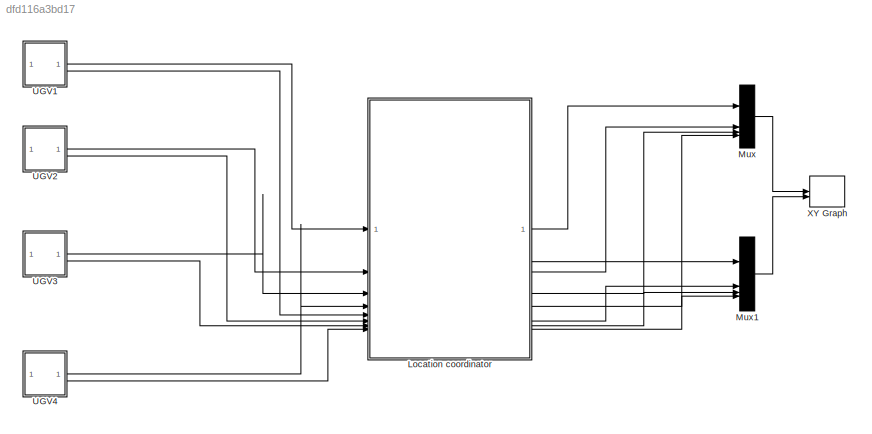
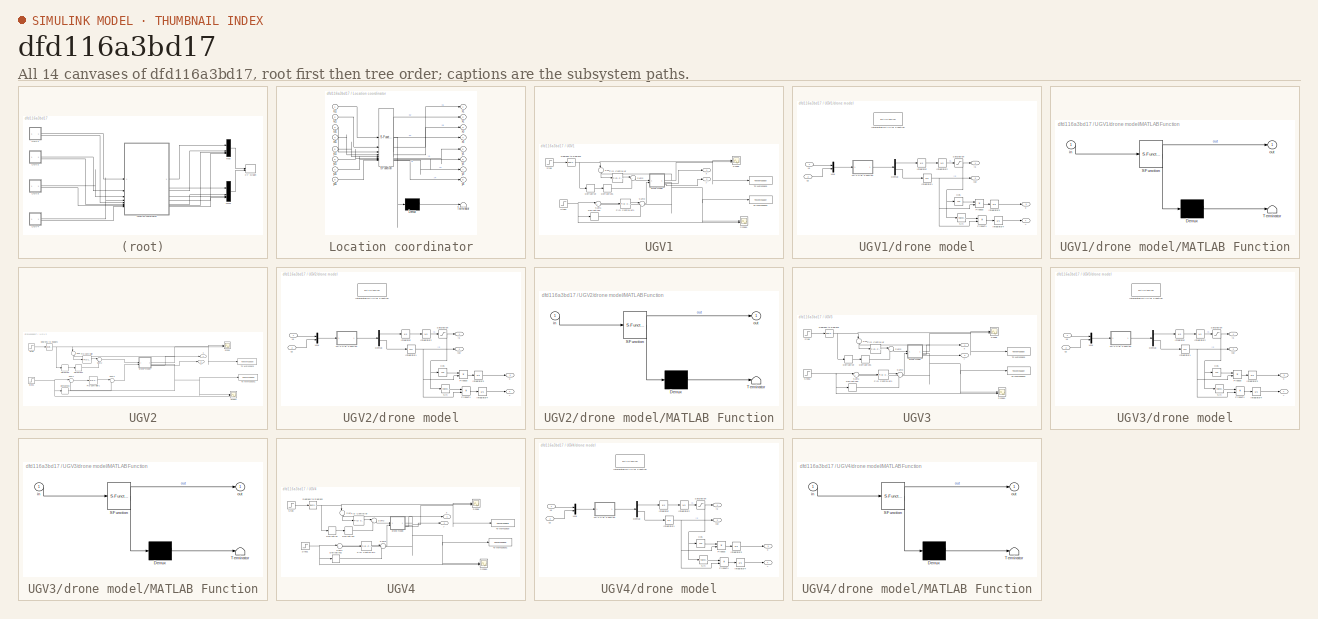
[diagram: thumbnail index - all 14 canvases of the model, root first then tree order]
MODEL slx_dfd116a3bd17
KIND model
CONFIG AbsTol = auto
CONFIG EnableMultiTasking = off
CONFIG FixedStep = auto
CONFIG InitFcn = xlim = 100;\nylim = 80;\nx10 = 5;\ny10 = 120;\nx20 = 5;\ny20 = 30;\nx30 = 30;\ny30 = 10;\nx40 = 130;\ny40 = 100;
CONFIG MaxStep = 0.70000000000000007
CONFIG MinStep = auto
CONFIG RelTol = 1e-3
CONFIG SampleTimeConstraint = Unconstrained
CONFIG SolverName = ode15s
CONFIG StartTime = 0.0
CONFIG StopTime = 80
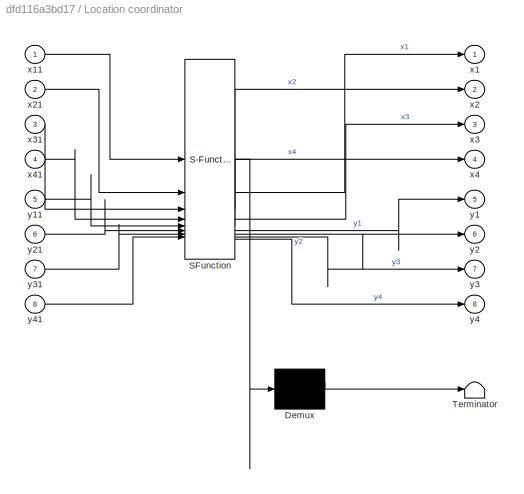
BLOCK [SubSystem] Location coordinator
  ErrorFcn = Stateflow.Translate.translate
  PermitHierarchicalResolution = ExplicitOnly
  SFBlockType = MATLAB Function
  TreatAsAtomicUnit = on
BLOCK [Demux] Location coordinator/ Demux 
  Outputs = 1
BLOCK [S-Function] Location coordinator/ SFunction 
  EnableBusSupport = on
  FunctionName = sf_sfun
  Parameters = x10,x20,x30,x40,xlim,y10,y20,y30,y40,ylim
  PortCounts = [8 9]
  SFcnIsStateOwnerBlock = off
  SFunctionDeploymentMode = off
  Tag = Stateflow S-Function 5
BLOCK [Terminator] Location coordinator/ Terminator 
BLOCK [Outport] Location coordinator/x1
BLOCK [Inport] Location coordinator/x11
BLOCK [Outport] Location coordinator/x2
  Port = 2
BLOCK [Inport] Location coordinator/x21
  Port = 2
BLOCK [Outport] Location coordinator/x3
  Port = 3
BLOCK [Inport] Location coordinator/x31
  Port = 3
BLOCK [Outport] Location coordinator/x4
  Port = 4
BLOCK [Inport] Location coordinator/x41
  Port = 4
BLOCK [Outport] Location coordinator/y1
  Port = 5
BLOCK [Inport] Location coordinator/y11
  Port = 5
BLOCK [Outport] Location coordinator/y2
  Port = 6
BLOCK [Inport] Location coordinator/y21
  Port = 6
BLOCK [Outport] Location coordinator/y3
  Port = 7
BLOCK [Inport] Location coordinator/y31
  Port = 7
BLOCK [Outport] Location coordinator/y4
  Port = 8
BLOCK [Inport] Location coordinator/y41
  Port = 8
BLOCK [Mux] Mux
  DisplayOption = bar
BLOCK [Mux] Mux1
  DisplayOption = bar
BLOCK [SubSystem] UGV1
BLOCK [Reference] UGV1/Degrees to Radians  REF=simulink_extras/Transformations/Degrees to
Radians
  SourceBlock = simulink_extras/Transformations/Degrees to\nRadians
  SourceType = DegreesToRadians
BLOCK [Derivative] UGV1/Derivative
BLOCK [Derivative] UGV1/Derivative1
BLOCK [Derivative] UGV1/Derivative2
BLOCK [Reference] UGV1/PID Controller  REF=slpidlib/PID Controller
  SourceBlock = slpidlib/PID Controller
  SourceType = PID 1dof
BLOCK [Reference] UGV1/PID Controller1  REF=slpidlib/PID Controller
  SourceBlock = slpidlib/PID Controller
  SourceType = PID 1dof
BLOCK [Scope] UGV1/Scope
  Floating = off
  NameLocation = right
  NumInputPorts = 2
  ScopeSpecificationString = Simulink.scopes.TimeScopeBlockCfg('CurrentConfiguration', extmgr.ConfigurationSet(extmgr.Configuration('Core','General UI',true),extmgr.Configuration('Core','Source UI',true),extmgr.Configuration('Sources','WiredSimulink',true),extmgr.Configuration('Visuals','Time Domain',true,'SerializedDisplays',{struct('MinYLimReal','-0.14438','MaxYLimReal','1.29946','YLabelReal','','MinYLimMag','0.00000','MaxY...<+1557ch>
BLOCK [Scope] UGV1/Scope1
  Floating = off
  NumInputPorts = 2
  ScopeSpecificationString = Simulink.scopes.TimeScopeBlockCfg('CurrentConfiguration', extmgr.ConfigurationSet(extmgr.Configuration('Core','General UI',true),extmgr.Configuration('Core','Source UI',true),extmgr.Configuration('Sources','WiredSimulink',true,'DataLoggingVariableName','ScopeData1'),extmgr.Configuration('Visuals','Time Domain',true,'SerializedDisplays',{struct('MinYLimReal','-1.97689','MaxYLimReal','2.44362','YLab...<+1421ch>
BLOCK [Step] UGV1/Step
  After = atan2d((ylim-y10), (xlim-x10))
  SampleTime = 0
  Time = 0
BLOCK [Step] UGV1/Step1
  After = 2
  SampleTime = 0
  Time = 0
BLOCK [Sum] UGV1/Sum
  Inputs = |+-
  NameLocation = left
BLOCK [Sum] UGV1/Sum1
  Inputs = |+-
BLOCK [Sum] UGV1/Sum2
  Inputs = |++
BLOCK [Sum] UGV1/Sum3
  Inputs = |++
BLOCK [ToWorkspace] UGV1/To Workspace
  FixptAsFi = on
  MaxDataPoints = inf
  SampleTime = -1
  SaveFormat = Timeseries
  VariableName = theta
BLOCK [ToWorkspace] UGV1/To Workspace1
  FixptAsFi = on
  MaxDataPoints = inf
  SampleTime = -1
  SaveFormat = Timeseries
  VariableName = vel
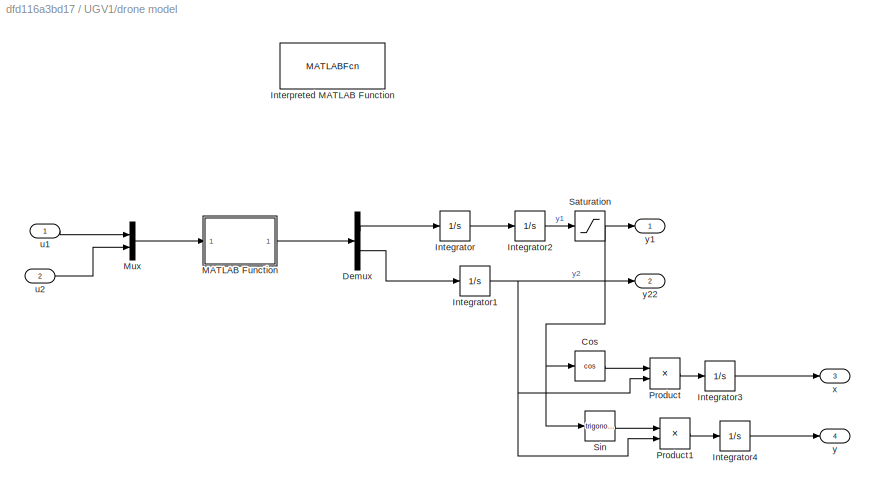
BLOCK [SubSystem] UGV1/drone model
BLOCK [Trigonometry] UGV1/drone model/Cos
  Operator = cos
BLOCK [Demux] UGV1/drone model/Demux
  Outputs = 2
BLOCK [Integrator] UGV1/drone model/Integrator
BLOCK [Integrator] UGV1/drone model/Integrator1
BLOCK [Integrator] UGV1/drone model/Integrator2
BLOCK [Integrator] UGV1/drone model/Integrator3
  InitialCondition = x10
BLOCK [Integrator] UGV1/drone model/Integrator4
  InitialCondition = y10
BLOCK [MATLABFcn] UGV1/drone model/Interpreted MATLAB Function
  Commented = on
  MATLABFcn = ugv
  OutputDimensions = 2
BLOCK [SubSystem] UGV1/drone model/MATLAB Function
  ErrorFcn = Stateflow.Translate.translate
  PermitHierarchicalResolution = ExplicitOnly
  SFBlockType = MATLAB Function
  TreatAsAtomicUnit = on
BLOCK [Demux] UGV1/drone model/MATLAB Function/ Demux 
  Outputs = 1
BLOCK [S-Function] UGV1/drone model/MATLAB Function/ SFunction 
  EnableBusSupport = on
  FunctionName = sf_sfun
  PortCounts = [1 2]
  SFcnIsStateOwnerBlock = off
  SFunctionDeploymentMode = off
  Tag = Stateflow S-Function 2
BLOCK [Terminator] UGV1/drone model/MATLAB Function/ Terminator 
BLOCK [Inport] UGV1/drone model/MATLAB Function/in
BLOCK [Outport] UGV1/drone model/MATLAB Function/out
BLOCK [Mux] UGV1/drone model/Mux
  DisplayOption = bar
  Inputs = 2
BLOCK [Product] UGV1/drone model/Product
BLOCK [Product] UGV1/drone model/Product1
BLOCK [Saturate] UGV1/drone model/Saturation
  LowerLimit = -pi
  UpperLimit = pi
BLOCK [Trigonometry] UGV1/drone model/Sin
BLOCK [Inport] UGV1/drone model/u1
BLOCK [Inport] UGV1/drone model/u2
  Port = 2
BLOCK [Outport] UGV1/drone model/x
  Port = 3
BLOCK [Outport] UGV1/drone model/y
  Port = 4
BLOCK [Outport] UGV1/drone model/y1
BLOCK [Outport] UGV1/drone model/y22
  Port = 2
BLOCK [Outport] UGV1/x
BLOCK [Outport] UGV1/y
  Port = 2
BLOCK [SubSystem] UGV2
BLOCK [Reference] UGV2/Degrees to Radians  REF=simulink_extras/Transformations/Degrees to
Radians
  SourceBlock = simulink_extras/Transformations/Degrees to\nRadians
  SourceType = DegreesToRadians
BLOCK [Derivative] UGV2/Derivative
BLOCK [Derivative] UGV2/Derivative1
BLOCK [Derivative] UGV2/Derivative2
BLOCK [Reference] UGV2/PID Controller  REF=slpidlib/PID Controller
  SourceBlock = slpidlib/PID Controller
  SourceType = PID 1dof
BLOCK [Reference] UGV2/PID Controller1  REF=slpidlib/PID Controller
  SourceBlock = slpidlib/PID Controller
  SourceType = PID 1dof
BLOCK [Scope] UGV2/Scope
  Floating = off
  NameLocation = right
  NumInputPorts = 2
  ScopeSpecificationString = Simulink.scopes.TimeScopeBlockCfg('CurrentConfiguration', extmgr.ConfigurationSet(extmgr.Configuration('Core','General UI',true),extmgr.Configuration('Core','Source UI',true),extmgr.Configuration('Sources','WiredSimulink',true),extmgr.Configuration('Visuals','Time Domain',true,'SerializedDisplays',{struct('MinYLimReal','-0.07484','MaxYLimReal','0.67353','YLabelReal','','MinYLimMag','0.00000','MaxY...<+1511ch>
BLOCK [Scope] UGV2/Scope1
  Floating = off
  NumInputPorts = 2
  ScopeSpecificationString = Simulink.scopes.TimeScopeBlockCfg('CurrentConfiguration', extmgr.ConfigurationSet(extmgr.Configuration('Core','General UI',true),extmgr.Configuration('Core','Source UI',true),extmgr.Configuration('Sources','WiredSimulink',true,'DataLoggingVariableName','ScopeData1'),extmgr.Configuration('Visuals','Time Domain',true,'SerializedDisplays',{struct('MinYLimReal','-0.95621','MaxYLimReal','1.80625','YLab...<+1510ch>
BLOCK [Step] UGV2/Step
  After = atan2d((ylim-y20), (xlim-x20))
  SampleTime = 0
  Time = 0
BLOCK [Step] UGV2/Step1
  After = 1.53
  SampleTime = 0
  Time = 0
BLOCK [Sum] UGV2/Sum
  Inputs = |+-
  NameLocation = left
BLOCK [Sum] UGV2/Sum1
  Inputs = |+-
BLOCK [Sum] UGV2/Sum2
  Inputs = |++
BLOCK [Sum] UGV2/Sum3
  Inputs = |++
BLOCK [ToWorkspace] UGV2/To Workspace
  FixptAsFi = on
  MaxDataPoints = inf
  SampleTime = -1
  SaveFormat = Timeseries
  VariableName = theta2
BLOCK [ToWorkspace] UGV2/To Workspace1
  FixptAsFi = on
  MaxDataPoints = inf
  SampleTime = -1
  SaveFormat = Timeseries
  VariableName = vel2
BLOCK [SubSystem] UGV2/drone model
BLOCK [Trigonometry] UGV2/drone model/Cos
  Operator = cos
BLOCK [Demux] UGV2/drone model/Demux
  Outputs = 2
BLOCK [Integrator] UGV2/drone model/Integrator
BLOCK [Integrator] UGV2/drone model/Integrator1
BLOCK [Integrator] UGV2/drone model/Integrator2
BLOCK [Integrator] UGV2/drone model/Integrator3
  InitialCondition = x20
BLOCK [Integrator] UGV2/drone model/Integrator4
  InitialCondition = y20
BLOCK [MATLABFcn] UGV2/drone model/Interpreted MATLAB Function
  Commented = on
  MATLABFcn = ugv
  OutputDimensions = 2
BLOCK [SubSystem] UGV2/drone model/MATLAB Function
  ErrorFcn = Stateflow.Translate.translate
  PermitHierarchicalResolution = ExplicitOnly
  SFBlockType = MATLAB Function
  TreatAsAtomicUnit = on
BLOCK [Demux] UGV2/drone model/MATLAB Function/ Demux 
  Outputs = 1
BLOCK [S-Function] UGV2/drone model/MATLAB Function/ SFunction 
  EnableBusSupport = on
  FunctionName = sf_sfun
  PortCounts = [1 2]
  SFcnIsStateOwnerBlock = off
  SFunctionDeploymentMode = off
  Tag = Stateflow S-Function 1
BLOCK [Terminator] UGV2/drone model/MATLAB Function/ Terminator 
BLOCK [Inport] UGV2/drone model/MATLAB Function/in
BLOCK [Outport] UGV2/drone model/MATLAB Function/out
BLOCK [Mux] UGV2/drone model/Mux
  DisplayOption = bar
  Inputs = 2
BLOCK [Product] UGV2/drone model/Product
BLOCK [Product] UGV2/drone model/Product1
BLOCK [Saturate] UGV2/drone model/Saturation
  LowerLimit = -pi
  UpperLimit = pi
BLOCK [Trigonometry] UGV2/drone model/Sin
BLOCK [Inport] UGV2/drone model/u1
BLOCK [Inport] UGV2/drone model/u2
  Port = 2
BLOCK [Outport] UGV2/drone model/x
  Port = 3
BLOCK [Outport] UGV2/drone model/y
  Port = 4
BLOCK [Outport] UGV2/drone model/y1
BLOCK [Outport] UGV2/drone model/y22
  Port = 2
BLOCK [Outport] UGV2/x
BLOCK [Outport] UGV2/y
  Port = 2
BLOCK [SubSystem] UGV3
BLOCK [Reference] UGV3/Degrees to Radians  REF=simulink_extras/Transformations/Degrees to
Radians
  SourceBlock = simulink_extras/Transformations/Degrees to\nRadians
  SourceType = DegreesToRadians
BLOCK [Derivative] UGV3/Derivative
BLOCK [Derivative] UGV3/Derivative1
BLOCK [Derivative] UGV3/Derivative2
BLOCK [Reference] UGV3/PID Controller  REF=slpidlib/PID Controller
  SourceBlock = slpidlib/PID Controller
  SourceType = PID 1dof
BLOCK [Reference] UGV3/PID Controller1  REF=slpidlib/PID Controller
  SourceBlock = slpidlib/PID Controller
  SourceType = PID 1dof
BLOCK [Scope] UGV3/Scope
  Floating = off
  NameLocation = right
  NumInputPorts = 2
  ScopeSpecificationString = Simulink.scopes.TimeScopeBlockCfg('CurrentConfiguration', extmgr.ConfigurationSet(extmgr.Configuration('Core','General UI',true),extmgr.Configuration('Core','Source UI',true),extmgr.Configuration('Sources','WiredSimulink',true),extmgr.Configuration('Visuals','Time Domain',true,'SerializedDisplays',{struct('MinYLimReal','-0.17299','MaxYLimReal','1.55694','YLabelReal','','MinYLimMag','0.00000','MaxY...<+1468ch>
BLOCK [Scope] UGV3/Scope1
  Floating = off
  NumInputPorts = 2
  ScopeSpecificationString = Simulink.scopes.TimeScopeBlockCfg('CurrentConfiguration', extmgr.ConfigurationSet(extmgr.Configuration('Core','General UI',true),extmgr.Configuration('Core','Source UI',true),extmgr.Configuration('Sources','WiredSimulink',true,'DataLoggingVariableName','ScopeData1'),extmgr.Configuration('Visuals','Time Domain',true,'SerializedDisplays',{struct('MinYLimReal','-2.80242','MaxYLimReal','1.8336','YLabe...<+1510ch>
BLOCK [Step] UGV3/Step
  After = atan2d((ylim-y30), (xlim-x30))
  SampleTime = 0
  Time = 0
BLOCK [Step] UGV3/Step1
  After = 1.37
  SampleTime = 0
  Time = 0
BLOCK [Sum] UGV3/Sum
  Inputs = |+-
  NameLocation = left
BLOCK [Sum] UGV3/Sum1
  Inputs = |+-
BLOCK [Sum] UGV3/Sum2
  Inputs = |++
BLOCK [Sum] UGV3/Sum3
  Inputs = |++
BLOCK [ToWorkspace] UGV3/To Workspace
  FixptAsFi = on
  MaxDataPoints = inf
  SampleTime = -1
  SaveFormat = Timeseries
  VariableName = theta3
BLOCK [ToWorkspace] UGV3/To Workspace1
  FixptAsFi = on
  MaxDataPoints = inf
  SampleTime = -1
  SaveFormat = Timeseries
  VariableName = vel3
BLOCK [SubSystem] UGV3/drone model
BLOCK [Trigonometry] UGV3/drone model/Cos
  Operator = cos
BLOCK [Demux] UGV3/drone model/Demux
  Outputs = 2
BLOCK [Integrator] UGV3/drone model/Integrator
BLOCK [Integrator] UGV3/drone model/Integrator1
BLOCK [Integrator] UGV3/drone model/Integrator2
BLOCK [Integrator] UGV3/drone model/Integrator3
  InitialCondition = x30
BLOCK [Integrator] UGV3/drone model/Integrator4
  InitialCondition = y30
BLOCK [MATLABFcn] UGV3/drone model/Interpreted MATLAB Function
  Commented = on
  MATLABFcn = ugv
  OutputDimensions = 2
BLOCK [SubSystem] UGV3/drone model/MATLAB Function
  ErrorFcn = Stateflow.Translate.translate
  PermitHierarchicalResolution = ExplicitOnly
  SFBlockType = MATLAB Function
  TreatAsAtomicUnit = on
BLOCK [Demux] UGV3/drone model/MATLAB Function/ Demux 
  Outputs = 1
BLOCK [S-Function] UGV3/drone model/MATLAB Function/ SFunction 
  EnableBusSupport = on
  FunctionName = sf_sfun
  PortCounts = [1 2]
  SFcnIsStateOwnerBlock = off
  SFunctionDeploymentMode = off
  Tag = Stateflow S-Function 3
BLOCK [Terminator] UGV3/drone model/MATLAB Function/ Terminator 
BLOCK [Inport] UGV3/drone model/MATLAB Function/in
BLOCK [Outport] UGV3/drone model/MATLAB Function/out
BLOCK [Mux] UGV3/drone model/Mux
  DisplayOption = bar
  Inputs = 2
BLOCK [Product] UGV3/drone model/Product
BLOCK [Product] UGV3/drone model/Product1
BLOCK [Saturate] UGV3/drone model/Saturation
  LowerLimit = -pi
  UpperLimit = pi
BLOCK [Trigonometry] UGV3/drone model/Sin
BLOCK [Inport] UGV3/drone model/u1
BLOCK [Inport] UGV3/drone model/u2
  Port = 2
BLOCK [Outport] UGV3/drone model/x
  Port = 3
BLOCK [Outport] UGV3/drone model/y
  Port = 4
BLOCK [Outport] UGV3/drone model/y1
BLOCK [Outport] UGV3/drone model/y22
  Port = 2
BLOCK [Outport] UGV3/x
BLOCK [Outport] UGV3/y
  Port = 2
BLOCK [SubSystem] UGV4
BLOCK [Reference] UGV4/Degrees to Radians  REF=simulink_extras/Transformations/Degrees to
Radians
  SourceBlock = simulink_extras/Transformations/Degrees to\nRadians
  SourceType = DegreesToRadians
BLOCK [Derivative] UGV4/Derivative
BLOCK [Derivative] UGV4/Derivative1
BLOCK [Derivative] UGV4/Derivative2
BLOCK [Reference] UGV4/PID Controller  REF=slpidlib/PID Controller
  SourceBlock = slpidlib/PID Controller
  SourceType = PID 1dof
BLOCK [Reference] UGV4/PID Controller1  REF=slpidlib/PID Controller
  SourceBlock = slpidlib/PID Controller
  SourceType = PID 1dof
BLOCK [Scope] UGV4/Scope
  Floating = off
  NameLocation = right
  NumInputPorts = 2
  ScopeSpecificationString = Simulink.scopes.TimeScopeBlockCfg('CurrentConfiguration', extmgr.ConfigurationSet(extmgr.Configuration('Core','General UI',true),extmgr.Configuration('Core','Source UI',true),extmgr.Configuration('Sources','WiredSimulink',true),extmgr.Configuration('Visuals','Time Domain',true,'SerializedDisplays',{struct('MinYLimReal','-0.16948','MaxYLimReal','1.52532','YLabelReal','','MinYLimMag','0.00000','MaxY...<+1466ch>
BLOCK [Scope] UGV4/Scope1
  Floating = off
  NumInputPorts = 2
  ScopeSpecificationString = Simulink.scopes.TimeScopeBlockCfg('CurrentConfiguration', extmgr.ConfigurationSet(extmgr.Configuration('Core','General UI',true),extmgr.Configuration('Core','Source UI',true),extmgr.Configuration('Sources','WiredSimulink',true,'DataLoggingVariableName','ScopeData1'),extmgr.Configuration('Visuals','Time Domain',true,'SerializedDisplays',{struct('MinYLimReal','-2.74562','MaxYLimReal','1.8299','YLabe...<+1419ch>
BLOCK [Step] UGV4/Step
  After = atan2d((ylim-y40), (xlim-x40))
  SampleTime = 0
  Time = 0
BLOCK [Step] UGV4/Step1
  After = 1.7
  SampleTime = 0
  Time = 0
BLOCK [Sum] UGV4/Sum
  Inputs = |+-
  NameLocation = left
BLOCK [Sum] UGV4/Sum1
  Inputs = |+-
BLOCK [Sum] UGV4/Sum2
  Inputs = |++
BLOCK [Sum] UGV4/Sum3
  Inputs = |++
BLOCK [ToWorkspace] UGV4/To Workspace
  FixptAsFi = on
  MaxDataPoints = inf
  SampleTime = -1
  SaveFormat = Timeseries
  VariableName = theta4
BLOCK [ToWorkspace] UGV4/To Workspace1
  FixptAsFi = on
  MaxDataPoints = inf
  SampleTime = -1
  SaveFormat = Timeseries
  VariableName = vel4
BLOCK [SubSystem] UGV4/drone model
BLOCK [Trigonometry] UGV4/drone model/Cos
  Operator = cos
BLOCK [Demux] UGV4/drone model/Demux
  Outputs = 2
BLOCK [Integrator] UGV4/drone model/Integrator
BLOCK [Integrator] UGV4/drone model/Integrator1
BLOCK [Integrator] UGV4/drone model/Integrator2
BLOCK [Integrator] UGV4/drone model/Integrator3
  InitialCondition = x40
BLOCK [Integrator] UGV4/drone model/Integrator4
  InitialCondition = y40
BLOCK [MATLABFcn] UGV4/drone model/Interpreted MATLAB Function
  Commented = on
  MATLABFcn = ugv
  OutputDimensions = 2
BLOCK [SubSystem] UGV4/drone model/MATLAB Function
  ErrorFcn = Stateflow.Translate.translate
  PermitHierarchicalResolution = ExplicitOnly
  SFBlockType = MATLAB Function
  TreatAsAtomicUnit = on
BLOCK [Demux] UGV4/drone model/MATLAB Function/ Demux 
  Outputs = 1
BLOCK [S-Function] UGV4/drone model/MATLAB Function/ SFunction 
  EnableBusSupport = on
  FunctionName = sf_sfun
  PortCounts = [1 2]
  SFcnIsStateOwnerBlock = off
  SFunctionDeploymentMode = off
  Tag = Stateflow S-Function 4
BLOCK [Terminator] UGV4/drone model/MATLAB Function/ Terminator 
BLOCK [Inport] UGV4/drone model/MATLAB Function/in
BLOCK [Outport] UGV4/drone model/MATLAB Function/out
BLOCK [Mux] UGV4/drone model/Mux
  DisplayOption = bar
  Inputs = 2
BLOCK [Product] UGV4/drone model/Product
BLOCK [Product] UGV4/drone model/Product1
BLOCK [Saturate] UGV4/drone model/Saturation
  LowerLimit = -pi
  UpperLimit = pi
BLOCK [Trigonometry] UGV4/drone model/Sin
BLOCK [Inport] UGV4/drone model/u1
BLOCK [Inport] UGV4/drone model/u2
  Port = 2
BLOCK [Outport] UGV4/drone model/x
  Port = 3
BLOCK [Outport] UGV4/drone model/y
  Port = 4
BLOCK [Outport] UGV4/drone model/y1
BLOCK [Outport] UGV4/drone model/y22
  Port = 2
BLOCK [Outport] UGV4/x
BLOCK [Outport] UGV4/y
  Port = 2
BLOCK [Record] XY Graph
  CompatibilityTag = XY
  FileSettingsInternal = {"entries":[{"content":{"excelSettings":{"content":{},"type":"Streamout.ExcelSettings"}},"type":"Streamout.FileSettingStorage","uuid":""}],"packageUris":["http:\/\/schema.mathworks.com\/mf0\/streamout_blocks\/R2020a"],"version":"1.0"}
  Layout = [1 1]
  SignalsInternal = {"entries":[{"content":{"signals":[{"content":{"blockPath":[],"dimensions":[4],"domain":"","hasChildren":true,"lineColor":"#77ac30","port":1,"sid":[""],"signalID":1,"signalName":"Mux"},"type":"RecordBlkView.Signal","uuid":""},{"content":{"blockPath":[],"channel":[1],"dimensions":[4],"domain":"","lineColor":"#22b573","lineWidth":2,"parentID":1,"plots":[ 1 ],"port":1,"sid":[""],"signalID":2,"signalN...<+1984ch>
  VisualizationBindings = {"xyplotplugin":{"info":[{"series":[{"bindingParametersList":[{"parameter":"X-Axis","signalID":2,"signalName":"Mux(1)"},{"parameter":"Y-Axis","signalID":4,"signalName":"Mux1(1)"}],"seriesID":0},{"bindingParametersList":[{"parameter":"X-Axis","signalID":6,"signalName":"Mux(3)"},{"parameter":"Y-Axis","signalID":9,"signalName":"Mux1(3)"}],"seriesID":1},{"bindingParametersList":[{"parameter":"X-Axis",...<+287ch>
LINE Location coordinator:1 -> Mux:1
LINE Location coordinator:2 -> Mux:2
LINE Location coordinator:3 -> Mux:3
LINE Location coordinator:4 -> Mux:4
LINE Location coordinator:5 -> Mux1:1
LINE Location coordinator:6 -> Mux1:2
LINE Location coordinator:7 -> Mux1:3
LINE Location coordinator:8 -> Mux1:4
LINE Mux1:1 -> XY Graph:2
LINE Mux:1 -> XY Graph:1
NET UGV1/Degrees to Radians:1 -> UGV1/Derivative:1, UGV1/Scope:2, UGV1/Sum:1
LINE UGV1/Derivative1:1 -> UGV1/Sum2:2
LINE UGV1/Derivative2:1 -> UGV1/Sum3:2
LINE UGV1/Derivative:1 -> UGV1/Derivative1:1
LINE UGV1/PID Controller1:1 -> UGV1/Sum3:1
LINE UGV1/PID Controller:1 -> UGV1/Sum2:1
NET UGV1/Step1:1 -> UGV1/Derivative2:1, UGV1/Scope1:2, UGV1/Sum1:1
LINE UGV1/Step:1 -> UGV1/Degrees to Radians:1
LINE UGV1/Sum1:1 -> UGV1/PID Controller1:1
LINE UGV1/Sum2:1 -> UGV1/drone model:1
LINE UGV1/Sum3:1 -> UGV1/drone model:2
LINE UGV1/Sum:1 -> UGV1/PID Controller:1
LINE UGV1/drone model/Cos:1 -> UGV1/drone model/Product:1
LINE UGV1/drone model/Demux:1 -> UGV1/drone model/Integrator:1
LINE UGV1/drone model/Demux:2 -> UGV1/drone model/Integrator1:1
NET UGV1/drone model/Integrator1:1 -> UGV1/drone model/Product1:2, UGV1/drone model/Product:2, UGV1/drone model/y22:1
LINE UGV1/drone model/Integrator2:1 -> UGV1/drone model/Saturation:1
LINE UGV1/drone model/Integrator3:1 -> UGV1/drone model/x:1
LINE UGV1/drone model/Integrator4:1 -> UGV1/drone model/y:1
LINE UGV1/drone model/Integrator:1 -> UGV1/drone model/Integrator2:1
LINE UGV1/drone model/MATLAB Function:1 -> UGV1/drone model/Demux:1
LINE UGV1/drone model/Mux:1 -> UGV1/drone model/MATLAB Function:1
LINE UGV1/drone model/Product1:1 -> UGV1/drone model/Integrator4:1
LINE UGV1/drone model/Product:1 -> UGV1/drone model/Integrator3:1
NET UGV1/drone model/Saturation:1 -> UGV1/drone model/Cos:1, UGV1/drone model/Sin:1, UGV1/drone model/y1:1
LINE UGV1/drone model/Sin:1 -> UGV1/drone model/Product1:1
LINE UGV1/drone model/u1:1 -> UGV1/drone model/Mux:1
LINE UGV1/drone model/u2:1 -> UGV1/drone model/Mux:2
NET UGV1/drone model:1 -> UGV1/Scope:1, UGV1/Sum:2, UGV1/To Workspace:1
NET UGV1/drone model:2 -> UGV1/Scope1:1, UGV1/Sum1:2, UGV1/To Workspace1:1
LINE UGV1/drone model:3 -> UGV1/x:1
LINE UGV1/drone model:4 -> UGV1/y:1
LINE UGV1:1 -> Location coordinator:1
LINE UGV1:2 -> Location coordinator:5
NET UGV2/Degrees to Radians:1 -> UGV2/Derivative:1, UGV2/Scope:2, UGV2/Sum:1
LINE UGV2/Derivative1:1 -> UGV2/Sum2:2
LINE UGV2/Derivative2:1 -> UGV2/Sum3:2
LINE UGV2/Derivative:1 -> UGV2/Derivative1:1
LINE UGV2/PID Controller1:1 -> UGV2/Sum3:1
LINE UGV2/PID Controller:1 -> UGV2/Sum2:1
NET UGV2/Step1:1 -> UGV2/Derivative2:1, UGV2/Scope1:2, UGV2/Sum1:1
LINE UGV2/Step:1 -> UGV2/Degrees to Radians:1
LINE UGV2/Sum1:1 -> UGV2/PID Controller1:1
LINE UGV2/Sum2:1 -> UGV2/drone model:1
LINE UGV2/Sum3:1 -> UGV2/drone model:2
LINE UGV2/Sum:1 -> UGV2/PID Controller:1
LINE UGV2/drone model/Cos:1 -> UGV2/drone model/Product:1
LINE UGV2/drone model/Demux:1 -> UGV2/drone model/Integrator:1
LINE UGV2/drone model/Demux:2 -> UGV2/drone model/Integrator1:1
NET UGV2/drone model/Integrator1:1 -> UGV2/drone model/Product1:2, UGV2/drone model/Product:2, UGV2/drone model/y22:1
LINE UGV2/drone model/Integrator2:1 -> UGV2/drone model/Saturation:1
LINE UGV2/drone model/Integrator3:1 -> UGV2/drone model/x:1
LINE UGV2/drone model/Integrator4:1 -> UGV2/drone model/y:1
LINE UGV2/drone model/Integrator:1 -> UGV2/drone model/Integrator2:1
LINE UGV2/drone model/MATLAB Function:1 -> UGV2/drone model/Demux:1
LINE UGV2/drone model/Mux:1 -> UGV2/drone model/MATLAB Function:1
LINE UGV2/drone model/Product1:1 -> UGV2/drone model/Integrator4:1
LINE UGV2/drone model/Product:1 -> UGV2/drone model/Integrator3:1
NET UGV2/drone model/Saturation:1 -> UGV2/drone model/Cos:1, UGV2/drone model/Sin:1, UGV2/drone model/y1:1
LINE UGV2/drone model/Sin:1 -> UGV2/drone model/Product1:1
LINE UGV2/drone model/u1:1 -> UGV2/drone model/Mux:1
LINE UGV2/drone model/u2:1 -> UGV2/drone model/Mux:2
NET UGV2/drone model:1 -> UGV2/Scope:1, UGV2/Sum:2, UGV2/To Workspace:1
NET UGV2/drone model:2 -> UGV2/Scope1:1, UGV2/Sum1:2, UGV2/To Workspace1:1
LINE UGV2/drone model:3 -> UGV2/x:1
LINE UGV2/drone model:4 -> UGV2/y:1
LINE UGV2:1 -> Location coordinator:2
LINE UGV2:2 -> Location coordinator:6
NET UGV3/Degrees to Radians:1 -> UGV3/Derivative:1, UGV3/Scope:2, UGV3/Sum:1
LINE UGV3/Derivative1:1 -> UGV3/Sum2:2
LINE UGV3/Derivative2:1 -> UGV3/Sum3:2
LINE UGV3/Derivative:1 -> UGV3/Derivative1:1
LINE UGV3/PID Controller1:1 -> UGV3/Sum3:1
LINE UGV3/PID Controller:1 -> UGV3/Sum2:1
NET UGV3/Step1:1 -> UGV3/Derivative2:1, UGV3/Scope1:2, UGV3/Sum1:1
LINE UGV3/Step:1 -> UGV3/Degrees to Radians:1
LINE UGV3/Sum1:1 -> UGV3/PID Controller1:1
LINE UGV3/Sum2:1 -> UGV3/drone model:1
LINE UGV3/Sum3:1 -> UGV3/drone model:2
LINE UGV3/Sum:1 -> UGV3/PID Controller:1
LINE UGV3/drone model/Cos:1 -> UGV3/drone model/Product:1
LINE UGV3/drone model/Demux:1 -> UGV3/drone model/Integrator:1
LINE UGV3/drone model/Demux:2 -> UGV3/drone model/Integrator1:1
NET UGV3/drone model/Integrator1:1 -> UGV3/drone model/Product1:2, UGV3/drone model/Product:2, UGV3/drone model/y22:1
LINE UGV3/drone model/Integrator2:1 -> UGV3/drone model/Saturation:1
LINE UGV3/drone model/Integrator3:1 -> UGV3/drone model/x:1
LINE UGV3/drone model/Integrator4:1 -> UGV3/drone model/y:1
LINE UGV3/drone model/Integrator:1 -> UGV3/drone model/Integrator2:1
LINE UGV3/drone model/MATLAB Function:1 -> UGV3/drone model/Demux:1
LINE UGV3/drone model/Mux:1 -> UGV3/drone model/MATLAB Function:1
LINE UGV3/drone model/Product1:1 -> UGV3/drone model/Integrator4:1
LINE UGV3/drone model/Product:1 -> UGV3/drone model/Integrator3:1
NET UGV3/drone model/Saturation:1 -> UGV3/drone model/Cos:1, UGV3/drone model/Sin:1, UGV3/drone model/y1:1
LINE UGV3/drone model/Sin:1 -> UGV3/drone model/Product1:1
LINE UGV3/drone model/u1:1 -> UGV3/drone model/Mux:1
LINE UGV3/drone model/u2:1 -> UGV3/drone model/Mux:2
NET UGV3/drone model:1 -> UGV3/Scope:1, UGV3/Sum:2, UGV3/To Workspace:1
NET UGV3/drone model:2 -> UGV3/Scope1:1, UGV3/Sum1:2, UGV3/To Workspace1:1
LINE UGV3/drone model:3 -> UGV3/x:1
LINE UGV3/drone model:4 -> UGV3/y:1
LINE UGV3:1 -> Location coordinator:3
LINE UGV3:2 -> Location coordinator:7
NET UGV4/Degrees to Radians:1 -> UGV4/Derivative:1, UGV4/Scope:2, UGV4/Sum:1
LINE UGV4/Derivative1:1 -> UGV4/Sum2:2
LINE UGV4/Derivative2:1 -> UGV4/Sum3:2
LINE UGV4/Derivative:1 -> UGV4/Derivative1:1
LINE UGV4/PID Controller1:1 -> UGV4/Sum3:1
LINE UGV4/PID Controller:1 -> UGV4/Sum2:1
NET UGV4/Step1:1 -> UGV4/Derivative2:1, UGV4/Scope1:2, UGV4/Sum1:1
LINE UGV4/Step:1 -> UGV4/Degrees to Radians:1
LINE UGV4/Sum1:1 -> UGV4/PID Controller1:1
LINE UGV4/Sum2:1 -> UGV4/drone model:1
LINE UGV4/Sum3:1 -> UGV4/drone model:2
LINE UGV4/Sum:1 -> UGV4/PID Controller:1
LINE UGV4/drone model/Cos:1 -> UGV4/drone model/Product:1
LINE UGV4/drone model/Demux:1 -> UGV4/drone model/Integrator:1
LINE UGV4/drone model/Demux:2 -> UGV4/drone model/Integrator1:1
NET UGV4/drone model/Integrator1:1 -> UGV4/drone model/Product1:2, UGV4/drone model/Product:2, UGV4/drone model/y22:1
LINE UGV4/drone model/Integrator2:1 -> UGV4/drone model/Saturation:1
LINE UGV4/drone model/Integrator3:1 -> UGV4/drone model/x:1
LINE UGV4/drone model/Integrator4:1 -> UGV4/drone model/y:1
LINE UGV4/drone model/Integrator:1 -> UGV4/drone model/Integrator2:1
LINE UGV4/drone model/MATLAB Function:1 -> UGV4/drone model/Demux:1
LINE UGV4/drone model/Mux:1 -> UGV4/drone model/MATLAB Function:1
LINE UGV4/drone model/Product1:1 -> UGV4/drone model/Integrator4:1
LINE UGV4/drone model/Product:1 -> UGV4/drone model/Integrator3:1
NET UGV4/drone model/Saturation:1 -> UGV4/drone model/Cos:1, UGV4/drone model/Sin:1, UGV4/drone model/y1:1
LINE UGV4/drone model/Sin:1 -> UGV4/drone model/Product1:1
LINE UGV4/drone model/u1:1 -> UGV4/drone model/Mux:1
LINE UGV4/drone model/u2:1 -> UGV4/drone model/Mux:2
NET UGV4/drone model:1 -> UGV4/Scope:1, UGV4/Sum:2, UGV4/To Workspace:1
NET UGV4/drone model:2 -> UGV4/Scope1:1, UGV4/Sum1:2, UGV4/To Workspace1:1
LINE UGV4/drone model:3 -> UGV4/x:1
LINE UGV4/drone model:4 -> UGV4/y:1
LINE UGV4:1 -> Location coordinator:4
LINE UGV4:2 -> Location coordinator:8
note: NET lines group one-source signal fan-out (src -> all destinations, sorted); 1:1 wires keep LINE
CHART UGV2/drone model/MATLAB Function states=1 transitions=1
  STATE_LABEL 'eML_blk_kernel()'
  STATE_LABEL 'SCRIPT:\nfunction out = ugv(in)\nu1 = in(1)\nu2 = in(2)\nr = 0.1;\nl = 0.5\nddy1 = r/l*(u2 -u1)\ndy2 = r/2 *(u1 + u2)\nout = [ddy1;dy2]'
CHART UGV1/drone model/MATLAB Function states=1 transitions=1
  STATE_LABEL 'eML_blk_kernel()'
  STATE_LABEL 'SCRIPT:\nfunction out = ugv(in)\nu1 = in(1)\nu2 = in(2)\nr = 0.1;\nl = 0.5\nddy1 = r/l*(u2 -u1)\ndy2 = r/2 *(u1 + u2)\nout = [ddy1;dy2]'
CHART UGV3/drone model/MATLAB Function states=1 transitions=1
  STATE_LABEL 'eML_blk_kernel()'
  STATE_LABEL 'SCRIPT:\nfunction out = ugv(in)\nu1 = in(1)\nu2 = in(2)\nr = 0.1;\nl = 0.5\nddy1 = r/l*(u2 -u1)\ndy2 = r/2 *(u1 + u2)\nout = [ddy1;dy2]'
CHART UGV4/drone model/MATLAB Function states=1 transitions=1
  STATE_LABEL 'eML_blk_kernel()'
  STATE_LABEL 'SCRIPT:\nfunction out = ugv(in)\nu1 = in(1)\nu2 = in(2)\nr = 0.1;\nl = 0.5\nddy1 = r/l*(u2 -u1)\ndy2 = r/2 *(u1 + u2)\nout = [ddy1;dy2]'
CHART Location coordinator states=1 transitions=1
  STATE_LABEL 'eML_blk_kernel()'
  STATE_LABEL 'SCRIPT:\nfunction [x1,x2,x3,x4,y1,y2,y3,y4] = fcn(x11,x21,x31,x41,y11,y21,y31,y41, x10, y10, x20, y20, x30, y30, x40, y40, xlim, ylim)\n% x-axis limit evaluation\nx1 = x11;\nif x11 > xlim && x10 < xlim\n    x1 = xlim;\nelseif x11 < xlim && x10 > xlim\n    x1 = xlim;\nend\n\nx2 = x21;\nif x21 > xlim && x20 < xlim\n    x2 = xlim;\nelseif x21 < xlim && x20 > xlim\n    x2 = xlim;\nend\n\nx3 = x31;\nif x31 > xlim && x30...<+628ch>'
CHART  states=0 transitions=0
CHART  states=0 transitions=0
CHART  states=0 transitions=0
CHART  states=0 transitions=0
CHART  states=0 transitions=0
